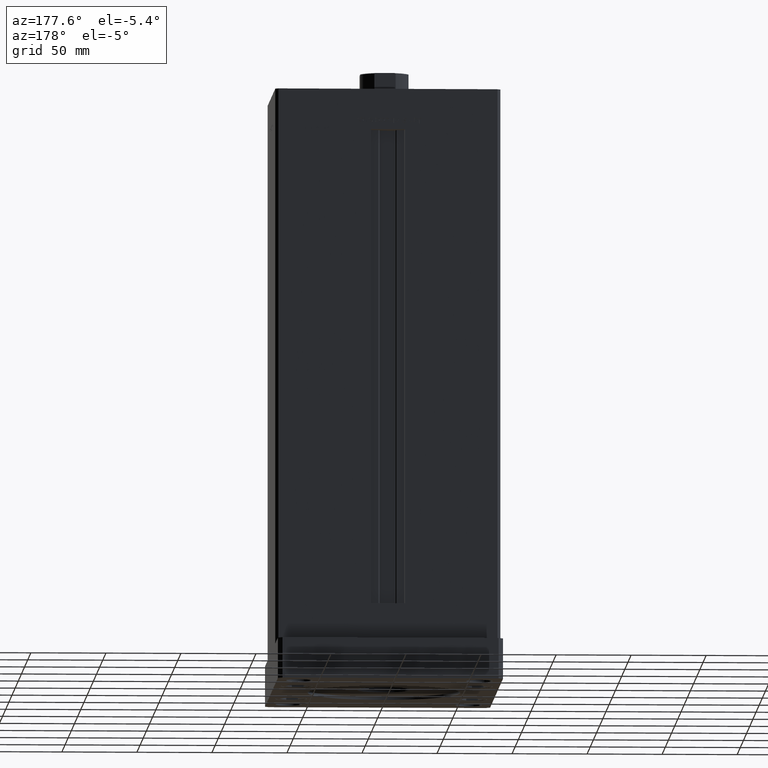
[diagram: clean part render]
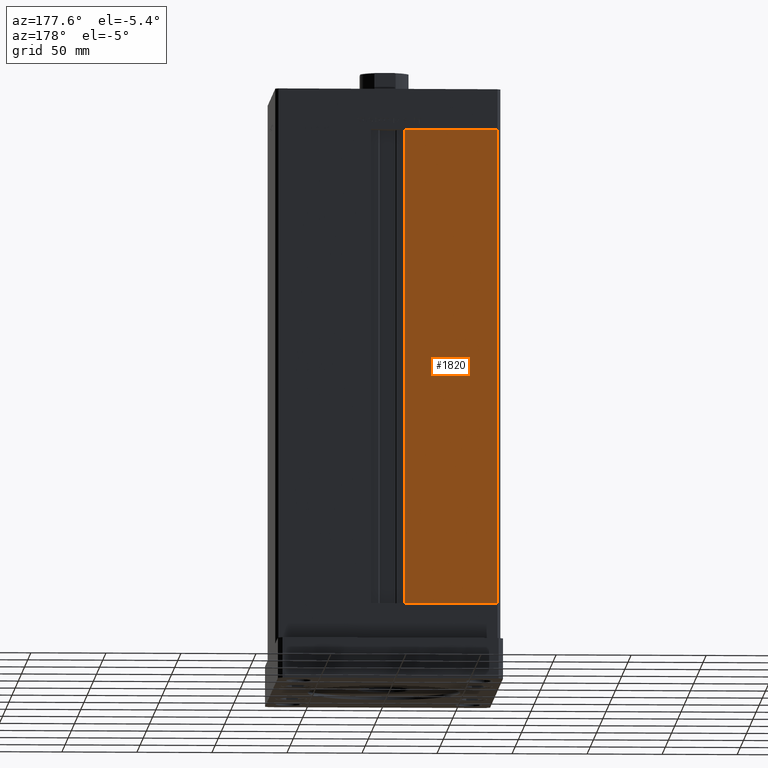
[diagram: same view with one face highlighted and labeled with its STEP entity id]
A machine part, auxiliary view. The second image highlights one B-rep face of the part: STEP entity #1820.
In plain terms, the highlighted planar face has unit normal (-0, -1, 0).
Its self-contained STEP definition (entity closure, byte-faithful):
#684 = LINE ( 'NONE', #17256, #17537 ) ;
#1820 = ADVANCED_FACE ( 'NONE', ( #16635 ), #40472, .F. ) ;
#3926 = EDGE_CURVE ( 'NONE', #32481, #5946, #684, .T. ) ;
#5415 = DIRECTION ( 'NONE',  ( -1.000000000000000000, 1.123707514802790025E-16, 0.000000000000000000 ) ) ;
#5763 = EDGE_CURVE ( 'NONE', #32481, #36995, #42545, .T. ) ;
#5946 = VERTEX_POINT ( 'NONE', #34019 ) ;
#6621 = DIRECTION ( 'NONE',  ( -0.000000000000000000, -0.000000000000000000, 1.000000000000000000 ) ) ;
#6672 = CARTESIAN_POINT ( 'NONE',  ( -11.25000000000000178, 62.49999999999999289, 0.000000000000000000 ) ) ;
#9385 = VECTOR ( 'NONE', #39009, 1000.000000000000000 ) ;
#11748 = CARTESIAN_POINT ( 'NONE',  ( -11.25000000000000178, 62.49999999999999289, 317.0000000000000000 ) ) ;
#13752 = DIRECTION ( 'NONE',  ( 1.000000000000000000, 0.000000000000000000, 0.000000000000000000 ) ) ;
#16635 = FACE_OUTER_BOUND ( 'NONE', #31370, .T. ) ;
#17256 = CARTESIAN_POINT ( 'NONE',  ( -11.25000000000000178, 62.49999999999999289, 0.000000000000000000 ) ) ;
#17537 = VECTOR ( 'NONE', #6621, 1000.000000000000000 ) ;
#19889 = DIRECTION ( 'NONE',  ( 1.000000000000000000, -1.123707514802790025E-16, 0.000000000000000000 ) ) ;
#22767 = LINE ( 'NONE', #47696, #9385 ) ;
#24266 = ORIENTED_EDGE ( 'NONE', *, *, #5763, .T. ) ;
#26120 = AXIS2_PLACEMENT_3D ( 'NONE', #11748, #36948, #19889 ) ;
#26468 = ORIENTED_EDGE ( 'NONE', *, *, #3926, .F. ) ;
#29561 = CARTESIAN_POINT ( 'NONE',  ( -11.25000000000000178, 62.49999999999999289, 0.000000000000000000 ) ) ;
#29568 = VERTEX_POINT ( 'NONE', #45334 ) ;
#31264 = ORIENTED_EDGE ( 'NONE', *, *, #34036, .F. ) ;
#31370 = EDGE_LOOP ( 'NONE', ( #36719, #26468, #24266, #31264 ) ) ;
#32481 = VERTEX_POINT ( 'NONE', #6672 ) ;
#34019 = CARTESIAN_POINT ( 'NONE',  ( -11.25000000000000178, 62.49999999999999289, 317.0000000000000000 ) ) ;
#34036 = EDGE_CURVE ( 'NONE', #29568, #36995, #22767, .T. ) ;
#36719 = ORIENTED_EDGE ( 'NONE', *, *, #52264, .T. ) ;
#36948 = DIRECTION ( 'NONE',  ( -1.123707514802790025E-16, -1.000000000000000000, 0.000000000000000000 ) ) ;
#36995 = VERTEX_POINT ( 'NONE', #45416 ) ;
#38665 = LINE ( 'NONE', #43529, #43520 ) ;
#39009 = DIRECTION ( 'NONE',  ( -0.000000000000000000, -0.000000000000000000, -1.000000000000000000 ) ) ;
#40472 = PLANE ( 'NONE',  #26120 ) ;
#42545 = LINE ( 'NONE', #29561, #52124 ) ;
#43520 = VECTOR ( 'NONE', #13752, 1000.000000000000000 ) ;
#43529 = CARTESIAN_POINT ( 'NONE',  ( -11.25000000000000178, 62.49999999999999289, 317.0000000000000000 ) ) ;
#45334 = CARTESIAN_POINT ( 'NONE',  ( -73.00000000000001421, 62.50000000000000000, 317.0000000000000000 ) ) ;
#45416 = CARTESIAN_POINT ( 'NONE',  ( -73.00000000000001421, 62.50000000000000000, 0.000000000000000000 ) ) ;
#47696 = CARTESIAN_POINT ( 'NONE',  ( -73.00000000000001421, 62.50000000000000000, 317.0000000000000000 ) ) ;
#52124 = VECTOR ( 'NONE', #5415, 1000.000000000000000 ) ;
#52264 = EDGE_CURVE ( 'NONE', #29568, #5946, #38665, .T. ) ;